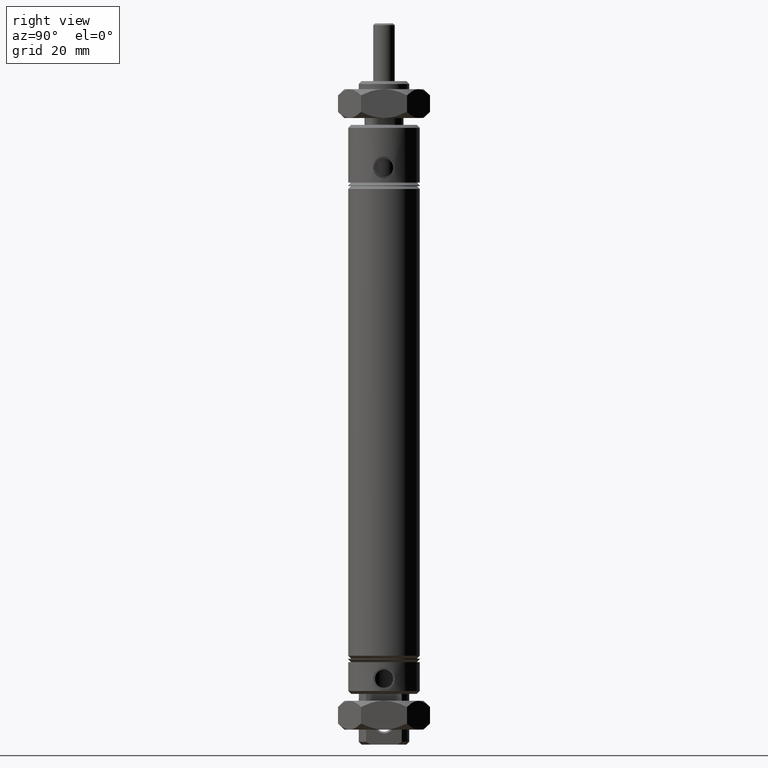
[diagram: clean part render]
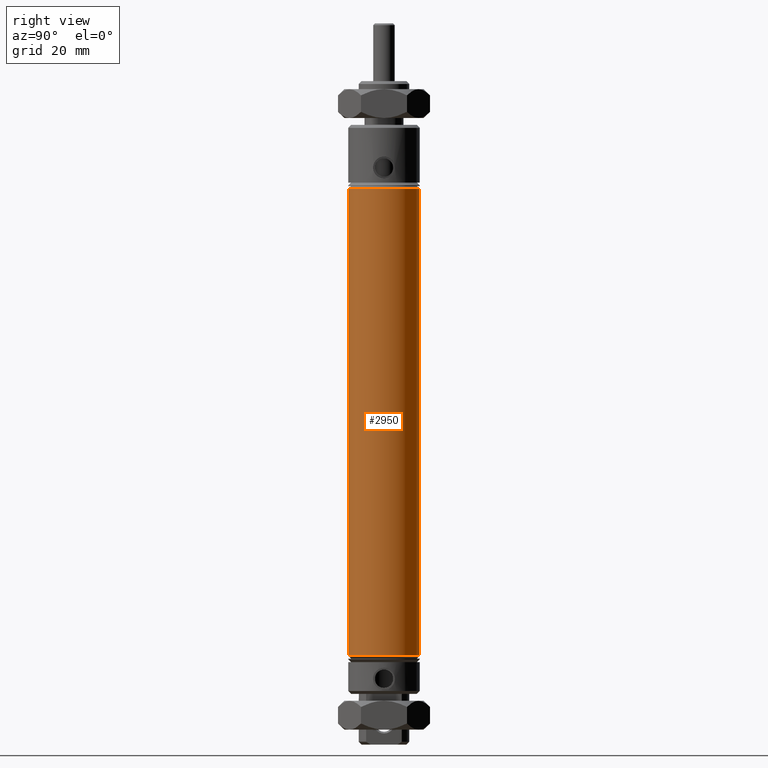
[diagram: same view with one face highlighted and labeled with its STEP entity id]
A machine part, right view. The second image highlights one B-rep face of the part: STEP entity #2950.
In plain terms, the highlighted cylindrical surface (edge-blend (fillet) strip) has radius 7.874 mm, axis along (0, 0, -1).
Its self-contained STEP definition (entity closure, byte-faithful):
#29 = VECTOR ( 'NONE', #2161, 39.37007874015748100 ) ;
#57 = EDGE_CURVE ( 'NONE', #4043, #64, #831, .T. ) ;
#64 = VERTEX_POINT ( 'NONE', #3850 ) ;
#110 = DIRECTION ( 'NONE',  ( -0.0000000000000000000, 8.860047547019231000E-017, -1.000000000000000000 ) ) ;
#129 = LINE ( 'NONE', #3418, #29 ) ;
#257 = ORIENTED_EDGE ( 'NONE', *, *, #3397, .F. ) ;
#360 = EDGE_CURVE ( 'NONE', #64, #3454, #2037, .T. ) ;
#382 = VERTEX_POINT ( 'NONE', #3461 ) ;
#447 = AXIS2_PLACEMENT_3D ( 'NONE', #1589, #3777, #1902 ) ;
#630 = VECTOR ( 'NONE', #110, 39.37007874015748100 ) ;
#831 = LINE ( 'NONE', #1973, #630 ) ;
#1007 = DIRECTION ( 'NONE',  ( -0.0000000000000000000, 8.860047547019231000E-017, -1.000000000000000000 ) ) ;
#1165 = CARTESIAN_POINT ( 'NONE',  ( 3.796405077356785900E-017, -0.3099999999999992800, -0.9349999999999997200 ) ) ;
#1297 = FACE_OUTER_BOUND ( 'NONE', #2093, .T. ) ;
#1318 = CARTESIAN_POINT ( 'NONE',  ( 0.0000000000000000000, -6.829619984160658000E-017, -5.750000000000000900 ) ) ;
#1375 = CARTESIAN_POINT ( 'NONE',  ( 0.0000000000000000000, -3.220544021177230300E-017, -0.9349999999999997200 ) ) ;
#1589 = CARTESIAN_POINT ( 'NONE',  ( 0.0000000000000000000, -1.715327189889049200E-016, -4.979999999999999500 ) ) ;
#1677 = DIRECTION ( 'NONE',  ( 0.0000000000000000000, -1.000000000000000000, 0.0000000000000000000 ) ) ;
#1689 = CIRCLE ( 'NONE', #2936, 0.3099999999999992800 ) ;
#1902 = DIRECTION ( 'NONE',  ( 0.0000000000000000000, -1.000000000000000000, 0.0000000000000000000 ) ) ;
#1973 = CARTESIAN_POINT ( 'NONE',  ( 3.796405077356791500E-017, -0.3099999999999998300, -5.750000000000000900 ) ) ;
#2037 = CIRCLE ( 'NONE', #447, 0.3100000000000000000 ) ;
#2093 = EDGE_LOOP ( 'NONE', ( #2309, #3010, #3311, #257 ) ) ;
#2161 = DIRECTION ( 'NONE',  ( -0.0000000000000000000, 8.860047547019231000E-017, -1.000000000000000000 ) ) ;
#2309 = ORIENTED_EDGE ( 'NONE', *, *, #2797, .F. ) ;
#2758 = CYLINDRICAL_SURFACE ( 'NONE', #3651, 0.3099999999999997800 ) ;
#2797 = EDGE_CURVE ( 'NONE', #4043, #382, #1689, .T. ) ;
#2936 = AXIS2_PLACEMENT_3D ( 'NONE', #1375, #3549, #1677 ) ;
#2950 = ADVANCED_FACE ( 'NONE', ( #1297 ), #2758, .T. ) ;
#3010 = ORIENTED_EDGE ( 'NONE', *, *, #57, .T. ) ;
#3311 = ORIENTED_EDGE ( 'NONE', *, *, #360, .T. ) ;
#3397 = EDGE_CURVE ( 'NONE', #382, #3454, #129, .T. ) ;
#3418 = CARTESIAN_POINT ( 'NONE',  ( 0.0000000000000000000, 0.3099999999999997200, -5.750000000000000900 ) ) ;
#3454 = VERTEX_POINT ( 'NONE', #3650 ) ;
#3461 = CARTESIAN_POINT ( 'NONE',  ( 0.0000000000000000000, 0.3099999999999992800, -0.9349999999999997200 ) ) ;
#3497 = DIRECTION ( 'NONE',  ( 0.0000000000000000000, 1.000000000000000000, 0.0000000000000000000 ) ) ;
#3549 = DIRECTION ( 'NONE',  ( -0.0000000000000000000, 3.444432108210942400E-017, 1.000000000000000000 ) ) ;
#3650 = CARTESIAN_POINT ( 'NONE',  ( 0.0000000000000000000, 0.3099999999999997800, -4.979999999999999500 ) ) ;
#3651 = AXIS2_PLACEMENT_3D ( 'NONE', #1318, #1007, #3497 ) ;
#3777 = DIRECTION ( 'NONE',  ( -0.0000000000000000000, 3.444432108210942400E-017, 1.000000000000000000 ) ) ;
#3850 = CARTESIAN_POINT ( 'NONE',  ( 3.796405077356793300E-017, -0.3100000000000001600, -4.979999999999999500 ) ) ;
#4043 = VERTEX_POINT ( 'NONE', #1165 ) ;